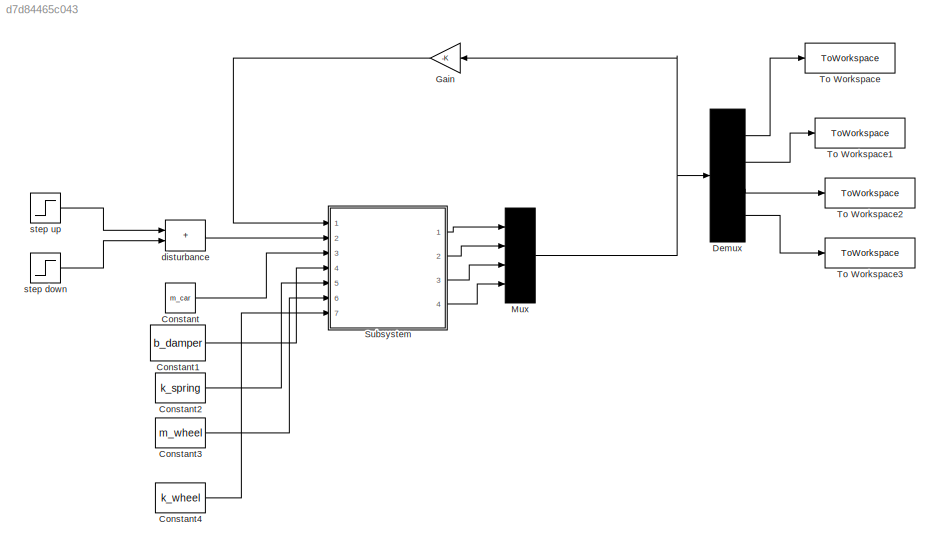
MODEL slx_d7d84465c043
KIND model
CONFIG AbsTol = auto
CONFIG EnableMultiTasking = off
CONFIG FixedStep = auto
CONFIG MaxStep = auto
CONFIG MinStep = auto
CONFIG RelTol = 1e-3
CONFIG SampleTimeConstraint = Unconstrained
CONFIG SolverName = VariableStepAuto
CONFIG StartTime = 0.0
CONFIG StopTime = 5
BLOCK [Constant] Constant
  Value = m_car
BLOCK [Constant] Constant1
  Value = b_damper
BLOCK [Constant] Constant2
  Value = k_spring
BLOCK [Constant] Constant3
  Value = m_wheel
BLOCK [Constant] Constant4
  Value = k_wheel
BLOCK [Demux] Demux
  Ports = [1, 4]
BLOCK [Gain] Gain
  Gain = -K
  Multiplication = Matrix(K*u)
BLOCK [Mux] Mux
  DisplayOption = bar
  Ports = [4, 1]
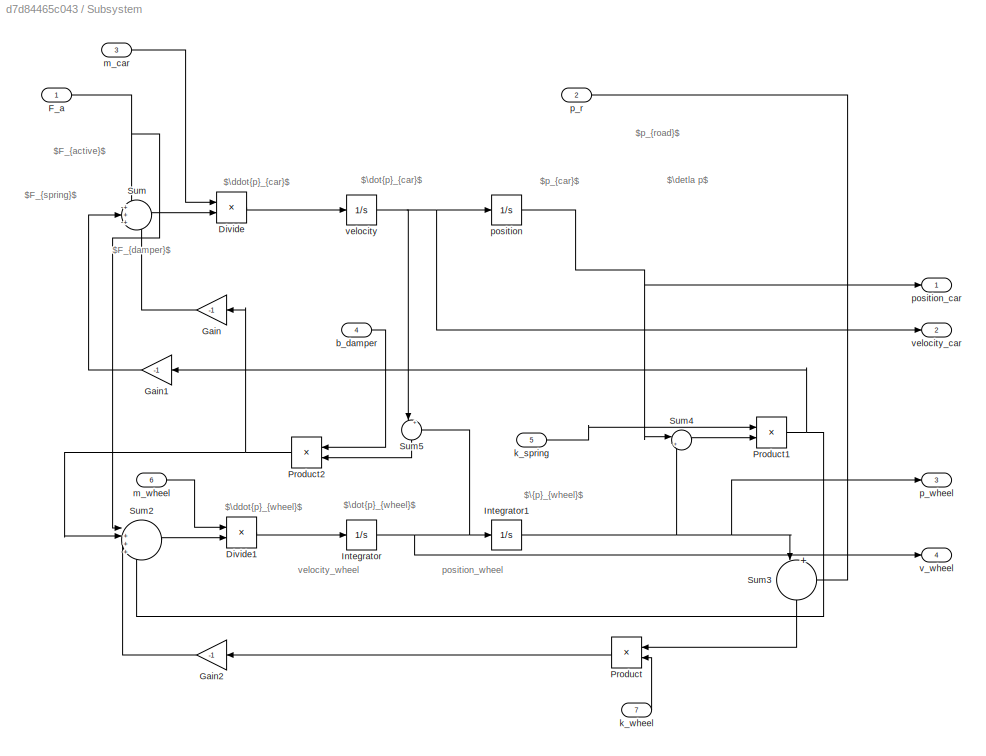
BLOCK [SubSystem] Subsystem
  Ports = [7, 4]
  RequestExecContextInheritance = off
BLOCK [Product] Subsystem/Divide
  Inputs = /*
  Ports = [2, 1]
BLOCK [Product] Subsystem/Divide1
  Inputs = */
  Ports = [2, 1]
BLOCK [Inport] Subsystem/F_a
BLOCK [Gain] Subsystem/Gain
  Gain = -1
BLOCK [Gain] Subsystem/Gain1
  Gain = -1
BLOCK [Gain] Subsystem/Gain2
  Gain = -1
BLOCK [Integrator] Subsystem/Integrator
  Ports = [1, 1]
BLOCK [Integrator] Subsystem/Integrator1
  Ports = [1, 1]
BLOCK [Product] Subsystem/Product
  Ports = [2, 1]
BLOCK [Product] Subsystem/Product1
  Ports = [2, 1]
BLOCK [Product] Subsystem/Product2
  Ports = [2, 1]
BLOCK [Sum] Subsystem/Sum
  Inputs = +++
  Ports = [3, 1]
BLOCK [Sum] Subsystem/Sum2
  Inputs = |++++
  Ports = [4, 1]
BLOCK [Sum] Subsystem/Sum3
  Inputs = |+-
  NameLocation = left
  Ports = [2, 1]
BLOCK [Sum] Subsystem/Sum4
  Inputs = |+-
  Ports = [2, 1]
BLOCK [Sum] Subsystem/Sum5
  Inputs = |+-
  NameLocation = left
  Ports = [2, 1]
BLOCK [Inport] Subsystem/b_damper
  Port = 4
BLOCK [Inport] Subsystem/k_spring
  Port = 5
BLOCK [Inport] Subsystem/k_wheel
  Port = 7
BLOCK [Inport] Subsystem/m_car
  Port = 3
BLOCK [Inport] Subsystem/m_wheel
  Port = 6
BLOCK [Inport] Subsystem/p_r
  Port = 2
BLOCK [Outport] Subsystem/p_wheel
  Port = 3
BLOCK [Integrator] Subsystem/position
  Ports = [1, 1]
BLOCK [Outport] Subsystem/position_car
BLOCK [Outport] Subsystem/v_wheel
  Port = 4
BLOCK [Integrator] Subsystem/velocity
  Ports = [1, 1]
BLOCK [Outport] Subsystem/velocity_car
  Port = 2
BLOCK [ToWorkspace] To Workspace
  FixptAsFi = on
  MaxDataPoints = inf
  Ports = [1]
  SampleTime = -1
  SaveFormat = Timeseries
  VariableName = car_position
BLOCK [ToWorkspace] To Workspace1
  FixptAsFi = on
  MaxDataPoints = inf
  Ports = [1]
  SampleTime = -1
  SaveFormat = Timeseries
  VariableName = car_velocity
BLOCK [ToWorkspace] To Workspace2
  FixptAsFi = on
  MaxDataPoints = inf
  Ports = [1]
  SampleTime = -1
  SaveFormat = Timeseries
  VariableName = tire_position
BLOCK [ToWorkspace] To Workspace3
  FixptAsFi = on
  MaxDataPoints = inf
  Ports = [1]
  SampleTime = -1
  SaveFormat = Timeseries
  VariableName = tire_velocity
BLOCK [Sum] disturbance
  IconShape = rectangular
  Ports = [2, 1]
BLOCK [Step] step down
  After = -1
  SampleTime = 0
BLOCK [Step] step up
  SampleTime = 0
  Time = 0
ANNOTATION Subsystem: $F_{active}$
ANNOTATION Subsystem: $F_{damper}$
ANNOTATION Subsystem: $F_{spring}$
ANNOTATION Subsystem: $\ddot{p}_{car}$
ANNOTATION Subsystem: $\ddot{p}_{wheel}$
ANNOTATION Subsystem: $\detla p$
ANNOTATION Subsystem: $\dot{p}_{car}$
ANNOTATION Subsystem: $\dot{p}_{wheel}$
ANNOTATION Subsystem: $\{p}_{wheel}$
ANNOTATION Subsystem: $p_{car}$
ANNOTATION Subsystem: $p_{road}$
ANNOTATION Subsystem: position_wheel
ANNOTATION Subsystem: velocity_wheel
LINE Constant1:1 -> Subsystem:4
LINE Constant2:1 -> Subsystem:5
LINE Constant3:1 -> Subsystem:6
LINE Constant4:1 -> Subsystem:7
LINE Constant:1 -> Subsystem:3
LINE Demux:1 -> To Workspace:1
LINE Demux:2 -> To Workspace1:1
LINE Demux:3 -> To Workspace2:1
LINE Demux:4 -> To Workspace3:1
LINE Gain:1 -> Subsystem:1
NET Mux:1 -> Demux:1, Gain:1
LINE Subsystem/Divide1:1 -> Subsystem/Integrator:1
LINE Subsystem/Divide:1 -> Subsystem/velocity:1
NET Subsystem/F_a:1 -> Subsystem/Sum2:1, Subsystem/Sum:1
LINE Subsystem/Gain1:1 -> Subsystem/Sum:2
LINE Subsystem/Gain2:1 -> Subsystem/Sum2:3
LINE Subsystem/Gain:1 -> Subsystem/Sum:3
NET Subsystem/Integrator1:1 -> Subsystem/Sum3:1, Subsystem/Sum4:2, Subsystem/p_wheel:1
NET Subsystem/Integrator:1 -> Subsystem/Integrator1:1, Subsystem/Sum5:2, Subsystem/v_wheel:1
NET Subsystem/Product1:1 -> Subsystem/Gain1:1, Subsystem/Sum2:4
NET Subsystem/Product2:1 -> Subsystem/Gain:1, Subsystem/Sum2:2
LINE Subsystem/Product:1 -> Subsystem/Gain2:1
LINE Subsystem/Sum2:1 -> Subsystem/Divide1:2
LINE Subsystem/Sum3:1 -> Subsystem/Product:1
LINE Subsystem/Sum4:1 -> Subsystem/Product1:2
LINE Subsystem/Sum5:1 -> Subsystem/Product2:2
LINE Subsystem/Sum:1 -> Subsystem/Divide:2
LINE Subsystem/b_damper:1 -> Subsystem/Product2:1
LINE Subsystem/k_spring:1 -> Subsystem/Product1:1
LINE Subsystem/k_wheel:1 -> Subsystem/Product:2
LINE Subsystem/m_car:1 -> Subsystem/Divide:1
LINE Subsystem/m_wheel:1 -> Subsystem/Divide1:1
LINE Subsystem/p_r:1 -> Subsystem/Sum3:2
NET Subsystem/position:1 -> Subsystem/Sum4:1, Subsystem/position_car:1
NET Subsystem/velocity:1 -> Subsystem/Sum5:1, Subsystem/position:1, Subsystem/velocity_car:1
LINE Subsystem:1 -> Mux:1
LINE Subsystem:2 -> Mux:2
LINE Subsystem:3 -> Mux:3
LINE Subsystem:4 -> Mux:4
LINE disturbance:1 -> Subsystem:2
LINE step down:1 -> disturbance:2
LINE step up:1 -> disturbance:1
note: NET lines group one-source signal fan-out (src -> all destinations, sorted); 1:1 wires keep LINE
